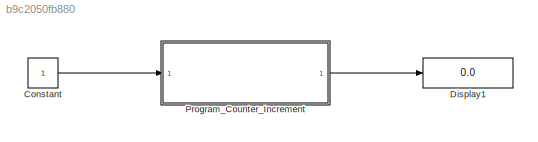
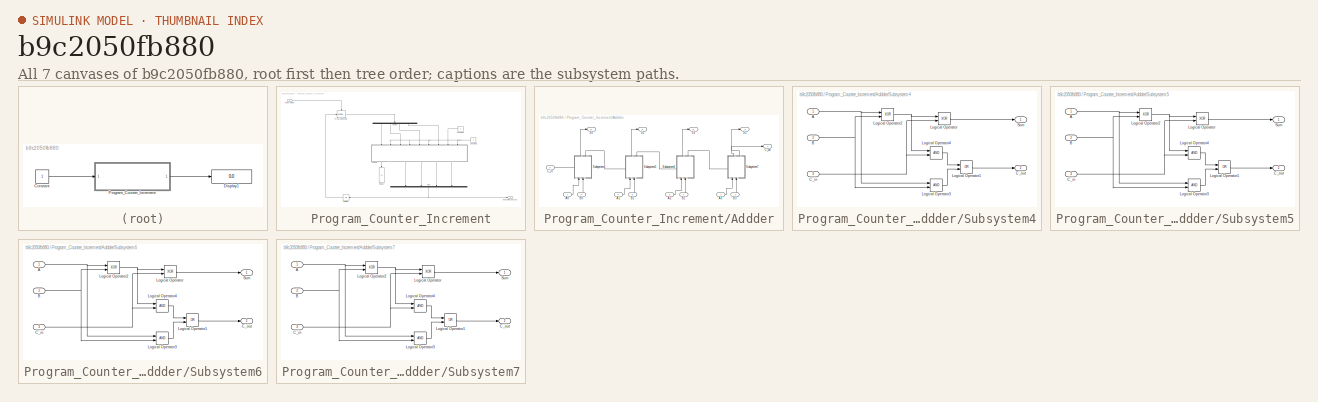
[diagram: thumbnail index - all 7 canvases of the model, root first then tree order]
MODEL slx_b9c2050fb880
KIND model
CONFIG AbsTol = auto
CONFIG EnableMultiTasking = off
CONFIG FixedStep = auto
CONFIG MaxStep = auto
CONFIG MinStep = auto
CONFIG RelTol = 1e-3
CONFIG SampleTimeConstraint = Unconstrained
CONFIG SolverName = VariableStepAuto
CONFIG StartTime = 0.0
CONFIG StopTime = inf
BLOCK [Constant] Constant
BLOCK [Display] Display1
  Decimation = 1
  Ports = [1]
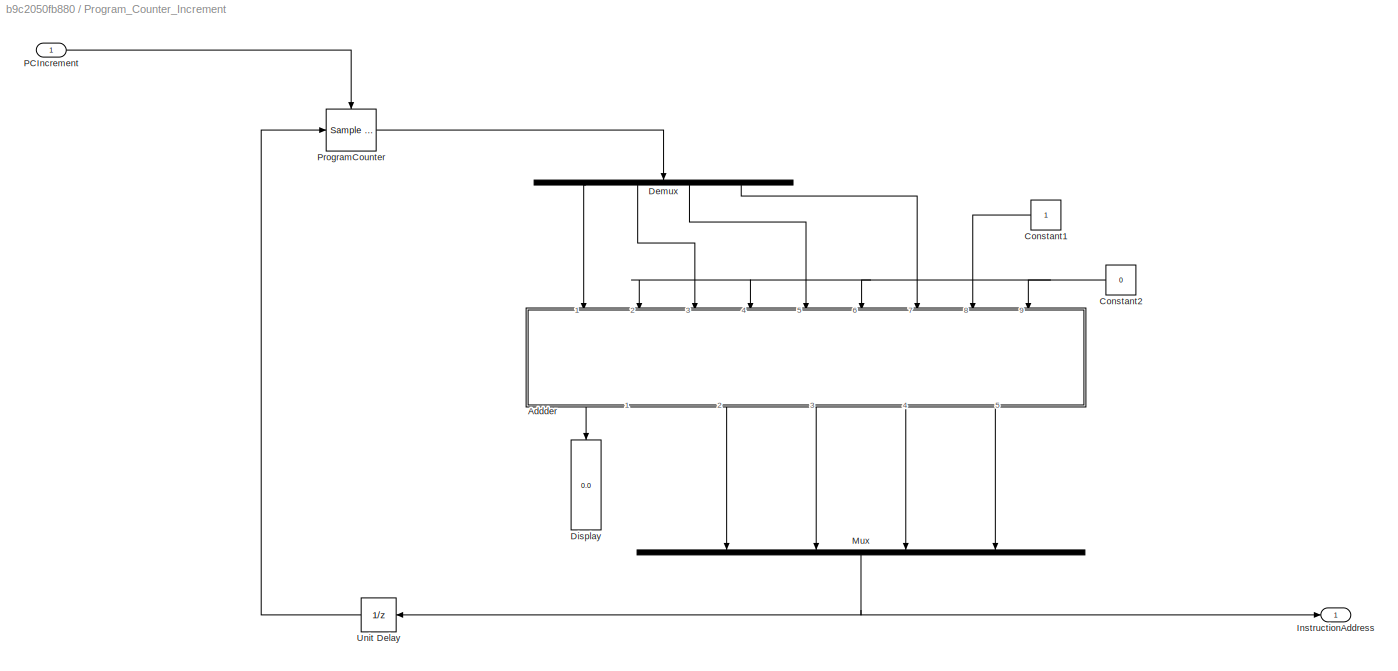
BLOCK [SubSystem] Program_Counter_Increment
  Ports = [1, 1]
  RequestExecContextInheritance = off
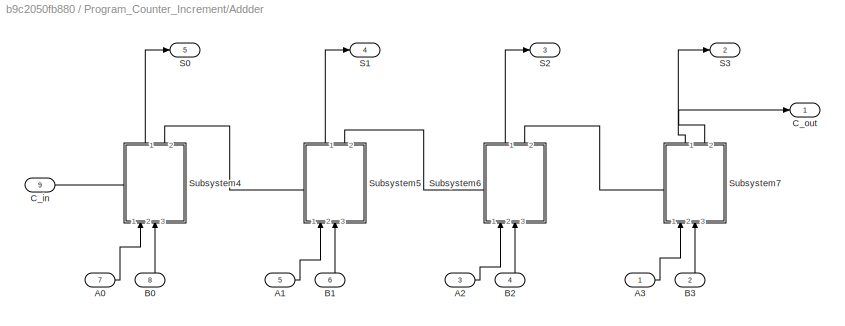
BLOCK [SubSystem] Program_Counter_Increment/Addder
  NameLocation = left
  Ports = [9, 5]
  RequestExecContextInheritance = off
BLOCK [Inport] Program_Counter_Increment/Addder/A0
  Port = 7
BLOCK [Inport] Program_Counter_Increment/Addder/A1
  Port = 5
BLOCK [Inport] Program_Counter_Increment/Addder/A2
  Port = 3
BLOCK [Inport] Program_Counter_Increment/Addder/A3
BLOCK [Inport] Program_Counter_Increment/Addder/B0
  Port = 8
BLOCK [Inport] Program_Counter_Increment/Addder/B1
  Port = 6
BLOCK [Inport] Program_Counter_Increment/Addder/B2
  Port = 4
BLOCK [Inport] Program_Counter_Increment/Addder/B3
  Port = 2
BLOCK [Inport] Program_Counter_Increment/Addder/C_in
  Port = 9
BLOCK [Outport] Program_Counter_Increment/Addder/C_out
BLOCK [Outport] Program_Counter_Increment/Addder/S0
  Port = 5
BLOCK [Outport] Program_Counter_Increment/Addder/S1
  Port = 4
BLOCK [Outport] Program_Counter_Increment/Addder/S2
  Port = 3
BLOCK [Outport] Program_Counter_Increment/Addder/S3
  Port = 2
BLOCK [SubSystem] Program_Counter_Increment/Addder/Subsystem4
  NameLocation = right
  PortSchema = {"entries":[{"content":{"sides":[{"content":{"connectorIds":["In1","In2"]},"type":"ConnectorPlacement.EquallySpacedRectSide","uuid":"38d1d783-1e84-469f-b88f-34400794f458"},{"content":{"connectorIds":["Out1","Out2"],"side":"RIGHT"},"type":"ConnectorPlacement.EquallySpacedRectSide","uuid":"9549b396-3b16-432f-9c12-dae7a5b8dc11"},{"content":{"connectorIds":["In3"],"side":"TOP"},"type":"ConnectorPlacem...<+258ch>  <repeated x4 — deduplicated; at blocks: Subsystem4, Subsystem5, Subsystem6, Subsystem7>
  Ports = [3, 2]
  RequestExecContextInheritance = off
BLOCK [Inport] Program_Counter_Increment/Addder/Subsystem4/A
BLOCK [Inport] Program_Counter_Increment/Addder/Subsystem4/B
  Port = 2
BLOCK [Inport] Program_Counter_Increment/Addder/Subsystem4/C_in
  Port = 3
BLOCK [Outport] Program_Counter_Increment/Addder/Subsystem4/C_out
  Port = 2
BLOCK [Logic] Program_Counter_Increment/Addder/Subsystem4/Logical Operator
  AllPortsSameDT = off
  Operator = XOR
  OutDataTypeStr = boolean
  Ports = [2, 1]
BLOCK [Logic] Program_Counter_Increment/Addder/Subsystem4/Logical Operator1
  AllPortsSameDT = off
  Operator = OR
  OutDataTypeStr = boolean
  Ports = [2, 1]
BLOCK [Logic] Program_Counter_Increment/Addder/Subsystem4/Logical Operator2
  AllPortsSameDT = off
  Operator = XOR
  OutDataTypeStr = boolean
  Ports = [2, 1]
BLOCK [Logic] Program_Counter_Increment/Addder/Subsystem4/Logical Operator3
  AllPortsSameDT = off
  OutDataTypeStr = boolean
  Ports = [2, 1]
BLOCK [Logic] Program_Counter_Increment/Addder/Subsystem4/Logical Operator4
  AllPortsSameDT = off
  OutDataTypeStr = boolean
  Ports = [2, 1]
BLOCK [Outport] Program_Counter_Increment/Addder/Subsystem4/Sum
BLOCK [SubSystem] Program_Counter_Increment/Addder/Subsystem5
  NameLocation = right
  Ports = [3, 2]
  RequestExecContextInheritance = off
BLOCK [Inport] Program_Counter_Increment/Addder/Subsystem5/A
BLOCK [Inport] Program_Counter_Increment/Addder/Subsystem5/B
  Port = 2
BLOCK [Inport] Program_Counter_Increment/Addder/Subsystem5/C_in
  Port = 3
BLOCK [Outport] Program_Counter_Increment/Addder/Subsystem5/C_out
  Port = 2
BLOCK [Logic] Program_Counter_Increment/Addder/Subsystem5/Logical Operator
  AllPortsSameDT = off
  Operator = XOR
  OutDataTypeStr = boolean
  Ports = [2, 1]
BLOCK [Logic] Program_Counter_Increment/Addder/Subsystem5/Logical Operator1
  AllPortsSameDT = off
  Operator = OR
  OutDataTypeStr = boolean
  Ports = [2, 1]
BLOCK [Logic] Program_Counter_Increment/Addder/Subsystem5/Logical Operator2
  AllPortsSameDT = off
  Operator = XOR
  OutDataTypeStr = boolean
  Ports = [2, 1]
BLOCK [Logic] Program_Counter_Increment/Addder/Subsystem5/Logical Operator3
  AllPortsSameDT = off
  OutDataTypeStr = boolean
  Ports = [2, 1]
BLOCK [Logic] Program_Counter_Increment/Addder/Subsystem5/Logical Operator4
  AllPortsSameDT = off
  OutDataTypeStr = boolean
  Ports = [2, 1]
BLOCK [Outport] Program_Counter_Increment/Addder/Subsystem5/Sum
BLOCK [SubSystem] Program_Counter_Increment/Addder/Subsystem6
  NameLocation = right
  Ports = [3, 2]
  RequestExecContextInheritance = off
BLOCK [Inport] Program_Counter_Increment/Addder/Subsystem6/A
BLOCK [Inport] Program_Counter_Increment/Addder/Subsystem6/B
  Port = 2
BLOCK [Inport] Program_Counter_Increment/Addder/Subsystem6/C_in
  Port = 3
BLOCK [Outport] Program_Counter_Increment/Addder/Subsystem6/C_out
  Port = 2
BLOCK [Logic] Program_Counter_Increment/Addder/Subsystem6/Logical Operator
  AllPortsSameDT = off
  Operator = XOR
  OutDataTypeStr = boolean
  Ports = [2, 1]
BLOCK [Logic] Program_Counter_Increment/Addder/Subsystem6/Logical Operator1
  AllPortsSameDT = off
  Operator = OR
  OutDataTypeStr = boolean
  Ports = [2, 1]
BLOCK [Logic] Program_Counter_Increment/Addder/Subsystem6/Logical Operator2
  AllPortsSameDT = off
  Operator = XOR
  OutDataTypeStr = boolean
  Ports = [2, 1]
BLOCK [Logic] Program_Counter_Increment/Addder/Subsystem6/Logical Operator3
  AllPortsSameDT = off
  OutDataTypeStr = boolean
  Ports = [2, 1]
BLOCK [Logic] Program_Counter_Increment/Addder/Subsystem6/Logical Operator4
  AllPortsSameDT = off
  OutDataTypeStr = boolean
  Ports = [2, 1]
BLOCK [Outport] Program_Counter_Increment/Addder/Subsystem6/Sum
BLOCK [SubSystem] Program_Counter_Increment/Addder/Subsystem7
  NameLocation = right
  Ports = [3, 2]
  RequestExecContextInheritance = off
BLOCK [Inport] Program_Counter_Increment/Addder/Subsystem7/A
BLOCK [Inport] Program_Counter_Increment/Addder/Subsystem7/B
  Port = 2
BLOCK [Inport] Program_Counter_Increment/Addder/Subsystem7/C_in
  Port = 3
BLOCK [Outport] Program_Counter_Increment/Addder/Subsystem7/C_out
  Port = 2
BLOCK [Logic] Program_Counter_Increment/Addder/Subsystem7/Logical Operator
  AllPortsSameDT = off
  Operator = XOR
  OutDataTypeStr = boolean
  Ports = [2, 1]
BLOCK [Logic] Program_Counter_Increment/Addder/Subsystem7/Logical Operator1
  AllPortsSameDT = off
  Operator = OR
  OutDataTypeStr = boolean
  Ports = [2, 1]
BLOCK [Logic] Program_Counter_Increment/Addder/Subsystem7/Logical Operator2
  AllPortsSameDT = off
  Operator = XOR
  OutDataTypeStr = boolean
  Ports = [2, 1]
BLOCK [Logic] Program_Counter_Increment/Addder/Subsystem7/Logical Operator3
  AllPortsSameDT = off
  OutDataTypeStr = boolean
  Ports = [2, 1]
BLOCK [Logic] Program_Counter_Increment/Addder/Subsystem7/Logical Operator4
  AllPortsSameDT = off
  OutDataTypeStr = boolean
  Ports = [2, 1]
BLOCK [Outport] Program_Counter_Increment/Addder/Subsystem7/Sum
BLOCK [Constant] Program_Counter_Increment/Constant1
  NameLocation = top
BLOCK [Constant] Program_Counter_Increment/Constant2
  NameLocation = top
  Value = 0
BLOCK [Demux] Program_Counter_Increment/Demux
  NameLocation = left
  Ports = [1, 4]
BLOCK [Display] Program_Counter_Increment/Display
  Decimation = 1
  NameLocation = left
  Ports = [1]
BLOCK [Outport] Program_Counter_Increment/InstructionAddress
BLOCK [Mux] Program_Counter_Increment/Mux
  DisplayOption = bar
  NameLocation = left
  Ports = [4, 1]
BLOCK [Inport] Program_Counter_Increment/PCIncrement
BLOCK [Reference] Program_Counter_Increment/ProgramCounter  REF=dspsigops/Sample
and Hold
  Ports = [1, 1, 0, 1]
  SourceBlock = dspsigops/Sample\nand Hold
  SourceProductBaseCode = DS
  SourceType = Sample and Hold
BLOCK [UnitDelay] Program_Counter_Increment/Unit Delay
  HasFrameUpgradeWarning = on
  NameLocation = top
  SampleTime = -1
LINE Constant:1 -> Program_Counter_Increment:1
LINE Program_Counter_Increment/Addder/A0:1 -> Program_Counter_Increment/Addder/Subsystem4:1
LINE Program_Counter_Increment/Addder/A1:1 -> Program_Counter_Increment/Addder/Subsystem5:1
LINE Program_Counter_Increment/Addder/A2:1 -> Program_Counter_Increment/Addder/Subsystem6:1
LINE Program_Counter_Increment/Addder/A3:1 -> Program_Counter_Increment/Addder/Subsystem7:1
LINE Program_Counter_Increment/Addder/B0:1 -> Program_Counter_Increment/Addder/Subsystem4:2
LINE Program_Counter_Increment/Addder/B1:1 -> Program_Counter_Increment/Addder/Subsystem5:2
LINE Program_Counter_Increment/Addder/B2:1 -> Program_Counter_Increment/Addder/Subsystem6:2
LINE Program_Counter_Increment/Addder/B3:1 -> Program_Counter_Increment/Addder/Subsystem7:2
LINE Program_Counter_Increment/Addder/C_in:1 -> Program_Counter_Increment/Addder/Subsystem4:3
NET Program_Counter_Increment/Addder/Subsystem4/A:1 -> Program_Counter_Increment/Addder/Subsystem4/Logical Operator2:1, Program_Counter_Increment/Addder/Subsystem4/Logical Operator3:1
NET Program_Counter_Increment/Addder/Subsystem4/B:1 -> Program_Counter_Increment/Addder/Subsystem4/Logical Operator2:2, Program_Counter_Increment/Addder/Subsystem4/Logical Operator3:2
NET Program_Counter_Increment/Addder/Subsystem4/C_in:1 -> Program_Counter_Increment/Addder/Subsystem4/Logical Operator4:2, Program_Counter_Increment/Addder/Subsystem4/Logical Operator:2
LINE Program_Counter_Increment/Addder/Subsystem4/Logical Operator1:1 -> Program_Counter_Increment/Addder/Subsystem4/C_out:1
NET Program_Counter_Increment/Addder/Subsystem4/Logical Operator2:1 -> Program_Counter_Increment/Addder/Subsystem4/Logical Operator4:1, Program_Counter_Increment/Addder/Subsystem4/Logical Operator:1
LINE Program_Counter_Increment/Addder/Subsystem4/Logical Operator3:1 -> Program_Counter_Increment/Addder/Subsystem4/Logical Operator1:2
LINE Program_Counter_Increment/Addder/Subsystem4/Logical Operator4:1 -> Program_Counter_Increment/Addder/Subsystem4/Logical Operator1:1
LINE Program_Counter_Increment/Addder/Subsystem4/Logical Operator:1 -> Program_Counter_Increment/Addder/Subsystem4/Sum:1
LINE Program_Counter_Increment/Addder/Subsystem4:1 -> Program_Counter_Increment/Addder/S0:1
LINE Program_Counter_Increment/Addder/Subsystem4:2 -> Program_Counter_Increment/Addder/Subsystem5:3
NET Program_Counter_Increment/Addder/Subsystem5/A:1 -> Program_Counter_Increment/Addder/Subsystem5/Logical Operator2:1, Program_Counter_Increment/Addder/Subsystem5/Logical Operator3:1
NET Program_Counter_Increment/Addder/Subsystem5/B:1 -> Program_Counter_Increment/Addder/Subsystem5/Logical Operator2:2, Program_Counter_Increment/Addder/Subsystem5/Logical Operator3:2
NET Program_Counter_Increment/Addder/Subsystem5/C_in:1 -> Program_Counter_Increment/Addder/Subsystem5/Logical Operator4:2, Program_Counter_Increment/Addder/Subsystem5/Logical Operator:2
LINE Program_Counter_Increment/Addder/Subsystem5/Logical Operator1:1 -> Program_Counter_Increment/Addder/Subsystem5/C_out:1
NET Program_Counter_Increment/Addder/Subsystem5/Logical Operator2:1 -> Program_Counter_Increment/Addder/Subsystem5/Logical Operator4:1, Program_Counter_Increment/Addder/Subsystem5/Logical Operator:1
LINE Program_Counter_Increment/Addder/Subsystem5/Logical Operator3:1 -> Program_Counter_Increment/Addder/Subsystem5/Logical Operator1:2
LINE Program_Counter_Increment/Addder/Subsystem5/Logical Operator4:1 -> Program_Counter_Increment/Addder/Subsystem5/Logical Operator1:1
LINE Program_Counter_Increment/Addder/Subsystem5/Logical Operator:1 -> Program_Counter_Increment/Addder/Subsystem5/Sum:1
LINE Program_Counter_Increment/Addder/Subsystem5:1 -> Program_Counter_Increment/Addder/S1:1
LINE Program_Counter_Increment/Addder/Subsystem5:2 -> Program_Counter_Increment/Addder/Subsystem6:3
NET Program_Counter_Increment/Addder/Subsystem6/A:1 -> Program_Counter_Increment/Addder/Subsystem6/Logical Operator2:1, Program_Counter_Increment/Addder/Subsystem6/Logical Operator3:1
NET Program_Counter_Increment/Addder/Subsystem6/B:1 -> Program_Counter_Increment/Addder/Subsystem6/Logical Operator2:2, Program_Counter_Increment/Addder/Subsystem6/Logical Operator3:2
NET Program_Counter_Increment/Addder/Subsystem6/C_in:1 -> Program_Counter_Increment/Addder/Subsystem6/Logical Operator4:2, Program_Counter_Increment/Addder/Subsystem6/Logical Operator:2
LINE Program_Counter_Increment/Addder/Subsystem6/Logical Operator1:1 -> Program_Counter_Increment/Addder/Subsystem6/C_out:1
NET Program_Counter_Increment/Addder/Subsystem6/Logical Operator2:1 -> Program_Counter_Increment/Addder/Subsystem6/Logical Operator4:1, Program_Counter_Increment/Addder/Subsystem6/Logical Operator:1
LINE Program_Counter_Increment/Addder/Subsystem6/Logical Operator3:1 -> Program_Counter_Increment/Addder/Subsystem6/Logical Operator1:2
LINE Program_Counter_Increment/Addder/Subsystem6/Logical Operator4:1 -> Program_Counter_Increment/Addder/Subsystem6/Logical Operator1:1
LINE Program_Counter_Increment/Addder/Subsystem6/Logical Operator:1 -> Program_Counter_Increment/Addder/Subsystem6/Sum:1
LINE Program_Counter_Increment/Addder/Subsystem6:1 -> Program_Counter_Increment/Addder/S2:1
LINE Program_Counter_Increment/Addder/Subsystem6:2 -> Program_Counter_Increment/Addder/Subsystem7:3
NET Program_Counter_Increment/Addder/Subsystem7/A:1 -> Program_Counter_Increment/Addder/Subsystem7/Logical Operator2:1, Program_Counter_Increment/Addder/Subsystem7/Logical Operator3:1
NET Program_Counter_Increment/Addder/Subsystem7/B:1 -> Program_Counter_Increment/Addder/Subsystem7/Logical Operator2:2, Program_Counter_Increment/Addder/Subsystem7/Logical Operator3:2
NET Program_Counter_Increment/Addder/Subsystem7/C_in:1 -> Program_Counter_Increment/Addder/Subsystem7/Logical Operator4:2, Program_Counter_Increment/Addder/Subsystem7/Logical Operator:2
LINE Program_Counter_Increment/Addder/Subsystem7/Logical Operator1:1 -> Program_Counter_Increment/Addder/Subsystem7/C_out:1
NET Program_Counter_Increment/Addder/Subsystem7/Logical Operator2:1 -> Program_Counter_Increment/Addder/Subsystem7/Logical Operator4:1, Program_Counter_Increment/Addder/Subsystem7/Logical Operator:1
LINE Program_Counter_Increment/Addder/Subsystem7/Logical Operator3:1 -> Program_Counter_Increment/Addder/Subsystem7/Logical Operator1:2
LINE Program_Counter_Increment/Addder/Subsystem7/Logical Operator4:1 -> Program_Counter_Increment/Addder/Subsystem7/Logical Operator1:1
LINE Program_Counter_Increment/Addder/Subsystem7/Logical Operator:1 -> Program_Counter_Increment/Addder/Subsystem7/Sum:1
LINE Program_Counter_Increment/Addder/Subsystem7:1 -> Program_Counter_Increment/Addder/S3:1
LINE Program_Counter_Increment/Addder/Subsystem7:2 -> Program_Counter_Increment/Addder/C_out:1
LINE Program_Counter_Increment/Addder:1 -> Program_Counter_Increment/Display:1
LINE Program_Counter_Increment/Addder:2 -> Program_Counter_Increment/Mux:1
LINE Program_Counter_Increment/Addder:3 -> Program_Counter_Increment/Mux:2
LINE Program_Counter_Increment/Addder:4 -> Program_Counter_Increment/Mux:3
LINE Program_Counter_Increment/Addder:5 -> Program_Counter_Increment/Mux:4
LINE Program_Counter_Increment/Constant1:1 -> Program_Counter_Increment/Addder:8
NET Program_Counter_Increment/Constant2:1 -> Program_Counter_Increment/Addder:2, Program_Counter_Increment/Addder:4, Program_Counter_Increment/Addder:6, Program_Counter_Increment/Addder:9
LINE Program_Counter_Increment/Demux:1 -> Program_Counter_Increment/Addder:1
LINE Program_Counter_Increment/Demux:2 -> Program_Counter_Increment/Addder:3
LINE Program_Counter_Increment/Demux:3 -> Program_Counter_Increment/Addder:5
LINE Program_Counter_Increment/Demux:4 -> Program_Counter_Increment/Addder:7
NET Program_Counter_Increment/Mux:1 -> Program_Counter_Increment/InstructionAddress:1, Program_Counter_Increment/Unit Delay:1
LINE Program_Counter_Increment/PCIncrement:1 -> Program_Counter_Increment/ProgramCounter:trigger
LINE Program_Counter_Increment/ProgramCounter:1 -> Program_Counter_Increment/Demux:1
LINE Program_Counter_Increment/Unit Delay:1 -> Program_Counter_Increment/ProgramCounter:1
LINE Program_Counter_Increment:1 -> Display1:1
note: NET lines group one-source signal fan-out (src -> all destinations, sorted); 1:1 wires keep LINE
